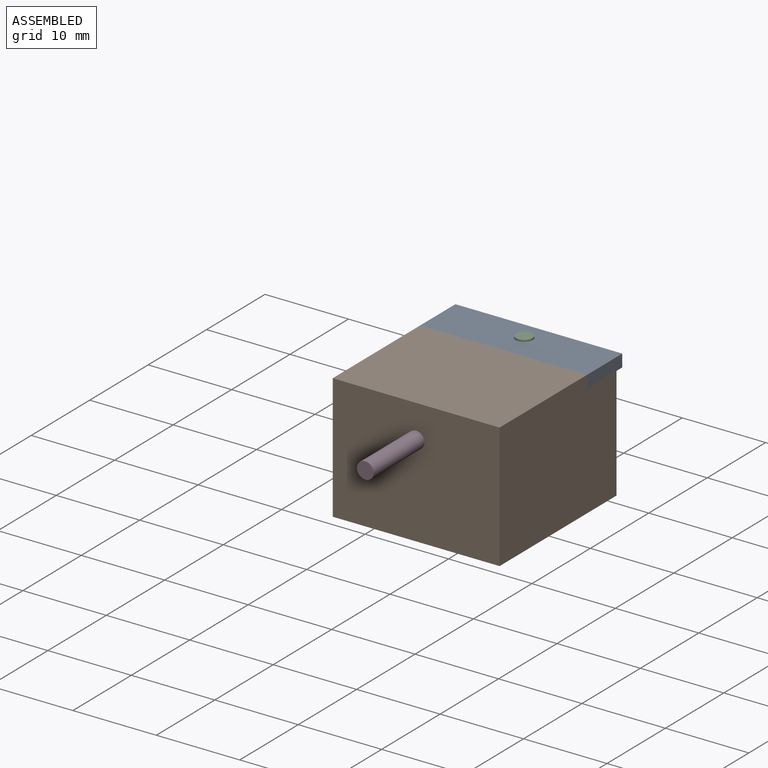
[diagram: assembled view]
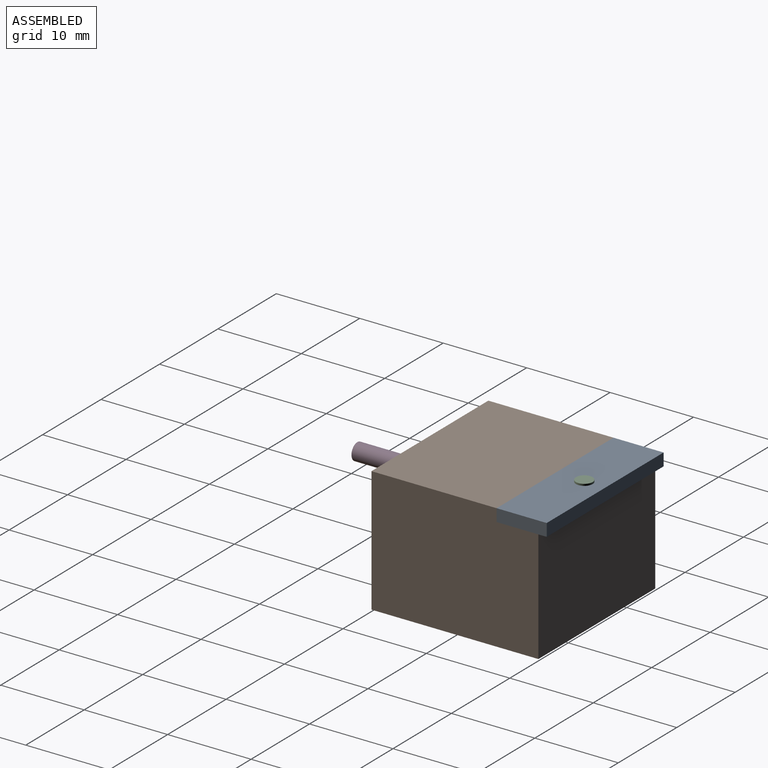
[diagram: assembled view, second angle]
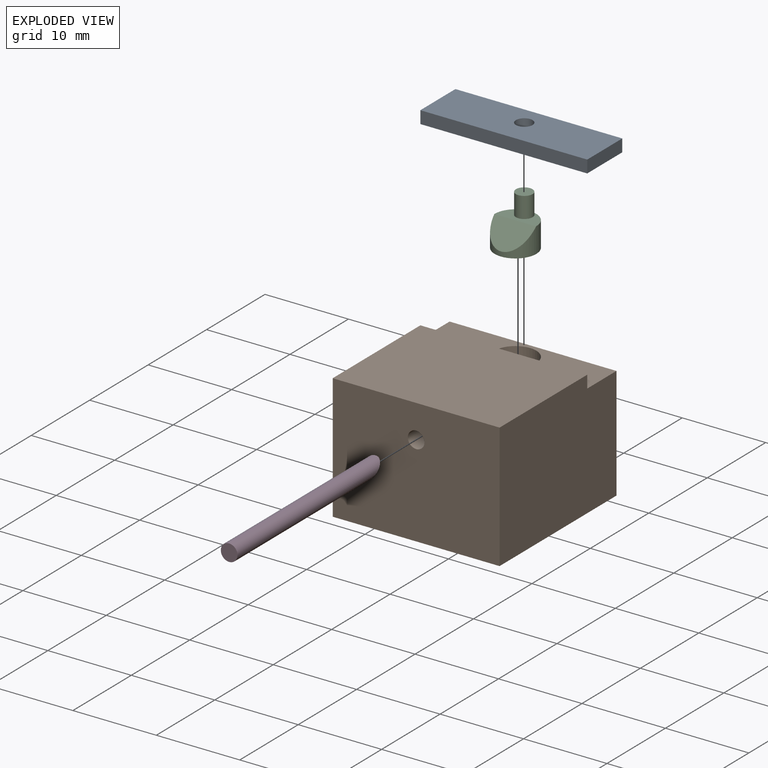
[diagram: exploded view]
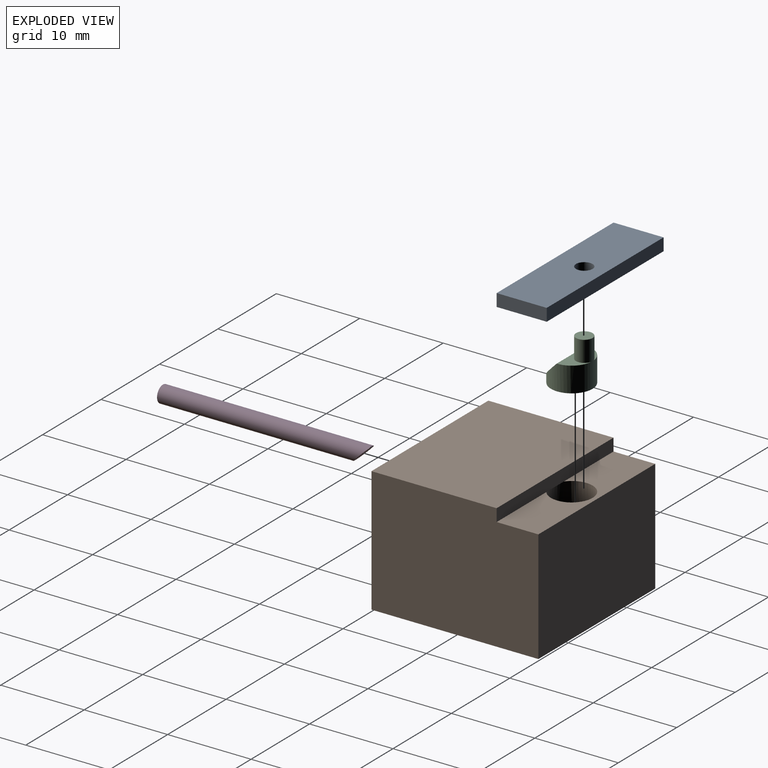
[diagram: exploded view, second angle]
ASSEMBLY  parts=4 mates=6
PART A: 7 faces, bbox 20x6x1.5 mm
  f0: plane 6x1.5mm, normal (-1,0,0), area 9mm2, adj f1,f4,f5,f6
  f1: plane 20x1.5mm, normal (0,-1,0), area 30mm2, adj f0,f2,f5,f6
  f2: plane 6x1.5mm, normal (1,0,0), area 9mm2, adj f1,f4,f5,f6
  f3: cylinder r=1mm len=2mm, axis (0,0,-1), area 9.4mm2, adj f5,f6
  f4: plane 20x1.5mm, normal (0,1,0), area 30mm2, adj f0,f2,f5,f6
  f5: plane 20x6mm, normal (0,0,1), area 116.9mm2, adj f0,f1,f2,f3,f4
  f6: plane 20x6mm, normal (0,0,-1), area 116.9mm2, adj f0,f1,f2,f3,f4
PART B: 12 faces, bbox 20x20x15 mm
  f0: plane 20x13.5mm, normal (0,1,0), area 270mm2, adj f1,f3,f5,f7
  f1: plane 20x15mm, normal (-1,0,0), area 292.5mm2, adj f0,f2,f4,f5,f6,f7
  f2: plane 20x15mm, normal (0,-1,0), area 296.9mm2, adj f1,f3,f4,f5,f11
  f3: plane 20x15mm, normal (1,0,0), area 292.5mm2, adj f0,f2,f4,f5,f6,f7
  f4: plane 20x15mm, normal (0,0,1), area 300mm2, adj f1,f2,f3,f6
  f5: plane 20x20mm, normal (0,0,-1), area 400mm2, adj f0,f1,f2,f3
  f6: plane 20x1.5mm, normal (0,1,0), area 30mm2, adj f1,f3,f4,f7,f10
  f7: plane 20x5mm, normal (0,0,1), area 81.4mm2, adj f0,f1,f3,f6,f8
  f8: cylinder r=2.5mm len=5mm, axis (0,0,1), area 59.6mm2, adj f7,f9,f10,f11
  f9: plane 5x5mm, normal (0,0,1), area 19.6mm2, adj f8
  f10: plane 3x0.5mm, normal (0,0,-1), area 1mm2, adj f6,f8
  f11: cylinder r=1mm len=14.71mm, axis (0,1,0), area 91.8mm2, adj f2,f8
PART C: 8 faces, bbox 5x5x5.5 mm
  f0: cylinder r=2.5mm len=5mm, axis (0,0,-1), area 35mm2, adj f1,f2,f3
  f1: plane 5x2.55mm, normal (0,0,-1), area 6.9mm2, adj f0,f3,f4
  f2: plane 5x5mm, normal (0,0,1), area 12.6mm2, adj f0,f6
  f3: plane 5x2.45mm, normal (0.71,0,-0.71), area 13.5mm2, adj f0,f1
  f4: cylinder r=1mm len=2.5mm, axis (0,0,1), area 15.7mm2, adj f1,f5
  f5: plane 2x2mm, normal (0,0,-1), area 3.1mm2, adj f4
  f6: cylinder r=1.5mm len=3mm, axis (0,0,1), area 9.4mm2, adj f2,f7
  f7: plane 3x3mm, normal (0,0,1), area 7.1mm2, adj f6
PART D: 4 faces, bbox 2x2x25 mm
  f0: cylinder r=1mm len=25mm, axis (0,0,-1), area 151.2mm2, adj f1,f2,f3
  f1: plane 2x2mm, normal (0,0,1), area 3.1mm2, adj f0
  f2: plane 0.74x0.07mm, normal (0,0,-1), area 0mm2, adj f0,f3
  f3: plane 2x1.93mm, normal (0,-0.71,-0.71), area 4.4mm2, adj f0,f2
PLACE A t=(-4.21,9.48,7.97)mm
PLACE B t=(-4.21,0.48,-5.53)mm fixed
PLACE C rot(axis=(-0.71,0.71,0),180deg) t=(-4.21,7.48,7.18)mm
PLACE D rot(axis=(1,0,0),90deg) t=(-4.21,6.78,5.47)mm
MATE cylindrical B.f8 <-> C.f0  axis (0,0,1) through (-4.21,7.48,7.97)mm
MATE parallel C.f3 <-> D.f3  axis (0,-0.71,0.71) through (-4.21,6.39,6.15)mm
MATE planar A.f6 <-> B.f7  axis (0,0,-1) through (-4.21,8.46,7.97)mm
MATE cylindrical C.f4 <-> A.f3  axis (0,0,-1) through (-4.21,8.98,8.43)mm
MATE parallel D.f0 <-> B.f2  axis (0,-1,0) through (-4.21,-18.22,5.47)mm
MATE slider D.f0 <-> B.f11  axis (0,1,0) through (-4.21,-5.72,5.47)mm
